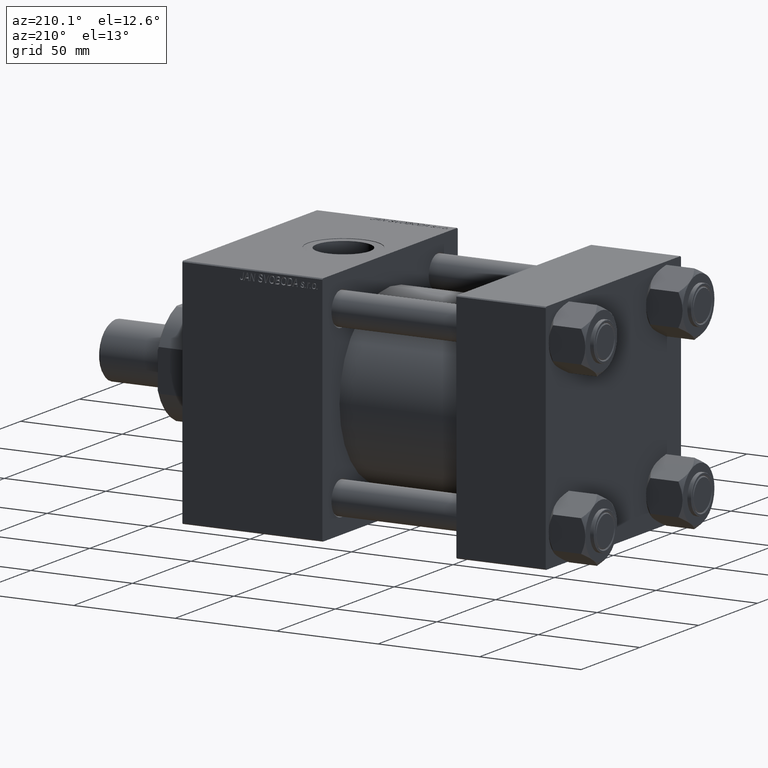
[diagram: clean part render]
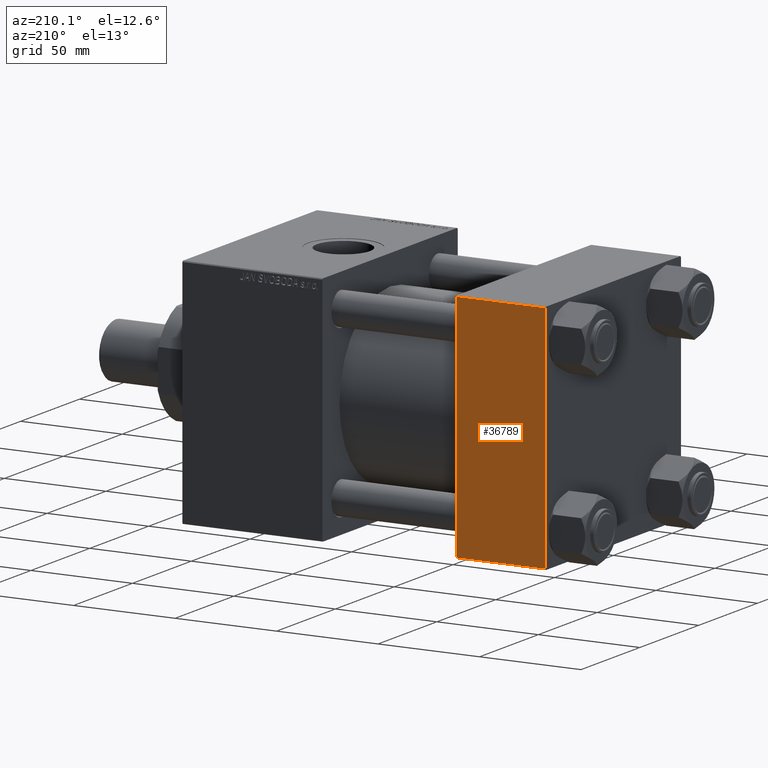
[diagram: same view with one face highlighted and labeled with its STEP entity id]
A machine part, auxiliary view. The second image highlights one B-rep face of the part: STEP entity #36789.
In plain terms, the highlighted planar face has unit normal (0, 1, 0).
Its self-contained STEP definition (entity closure, byte-faithful):
#282 = EDGE_CURVE ( 'NONE', #28335, #8438, #32369, .T. ) ;
#1511 = ORIENTED_EDGE ( 'NONE', *, *, #39549, .T. ) ;
#2745 = CARTESIAN_POINT ( 'NONE',  ( 0.000000000000000000, 57.49999999999999289, 57.50000000000000711 ) ) ;
#7771 = CARTESIAN_POINT ( 'NONE',  ( 44.00000000000000000, 57.49999999999999289, 57.50000000000000711 ) ) ;
#8438 = VERTEX_POINT ( 'NONE', #20885 ) ;
#10194 = AXIS2_PLACEMENT_3D ( 'NONE', #7771, #19970, #39658 ) ;
#10848 = CARTESIAN_POINT ( 'NONE',  ( 0.000000000000000000, 57.49999999999999289, -57.00000000000000711 ) ) ;
#12074 = VERTEX_POINT ( 'NONE', #10848 ) ;
#13216 = CARTESIAN_POINT ( 'NONE',  ( 44.00000000000000000, 57.49999999999999289, 57.00000000000003553 ) ) ;
#18049 = LINE ( 'NONE', #2745, #25586 ) ;
#19573 = CARTESIAN_POINT ( 'NONE',  ( 0.000000000000000000, 57.49999999999999289, 57.00000000000003553 ) ) ;
#19970 = DIRECTION ( 'NONE',  ( -0.000000000000000000, 1.000000000000000000, 0.000000000000000000 ) ) ;
#20885 = CARTESIAN_POINT ( 'NONE',  ( 44.00000000000000000, 57.49999999999999289, -57.00000000000000711 ) ) ;
#21805 = EDGE_CURVE ( 'NONE', #22456, #12074, #18049, .T. ) ;
#22456 = VERTEX_POINT ( 'NONE', #19573 ) ;
#22907 = CARTESIAN_POINT ( 'NONE',  ( 44.00000000000000000, 57.49999999999999289, 57.00000000000003553 ) ) ;
#23853 = FACE_OUTER_BOUND ( 'NONE', #31777, .T. ) ;
#24581 = DIRECTION ( 'NONE',  ( 0.000000000000000000, 0.000000000000000000, -1.000000000000000000 ) ) ;
#25586 = VECTOR ( 'NONE', #41884, 1000.000000000000000 ) ;
#27766 = ORIENTED_EDGE ( 'NONE', *, *, #21805, .F. ) ;
#28335 = VERTEX_POINT ( 'NONE', #22907 ) ;
#31647 = LINE ( 'NONE', #47468, #47602 ) ;
#31777 = EDGE_LOOP ( 'NONE', ( #32155, #1511, #27766, #45642 ) ) ;
#32155 = ORIENTED_EDGE ( 'NONE', *, *, #282, .T. ) ;
#32369 = LINE ( 'NONE', #40387, #39024 ) ;
#33169 = DIRECTION ( 'NONE',  ( 1.000000000000000000, 0.000000000000000000, 0.000000000000000000 ) ) ;
#33518 = VECTOR ( 'NONE', #33169, 1000.000000000000000 ) ;
#36789 = ADVANCED_FACE ( 'NONE', ( #23853 ), #43291, .T. ) ;
#39024 = VECTOR ( 'NONE', #24581, 1000.000000000000000 ) ;
#39549 = EDGE_CURVE ( 'NONE', #8438, #12074, #31647, .T. ) ;
#39645 = EDGE_CURVE ( 'NONE', #22456, #28335, #44580, .T. ) ;
#39658 = DIRECTION ( 'NONE',  ( 0.000000000000000000, -0.000000000000000000, 1.000000000000000000 ) ) ;
#39681 = DIRECTION ( 'NONE',  ( -1.000000000000000000, 0.000000000000000000, 0.000000000000000000 ) ) ;
#40387 = CARTESIAN_POINT ( 'NONE',  ( 44.00000000000000000, 57.49999999999999289, 57.50000000000000711 ) ) ;
#41884 = DIRECTION ( 'NONE',  ( 0.000000000000000000, 0.000000000000000000, -1.000000000000000000 ) ) ;
#43291 = PLANE ( 'NONE',  #10194 ) ;
#44580 = LINE ( 'NONE', #13216, #33518 ) ;
#45642 = ORIENTED_EDGE ( 'NONE', *, *, #39645, .T. ) ;
#47468 = CARTESIAN_POINT ( 'NONE',  ( 44.00000000000000000, 57.49999999999999289, -57.00000000000000711 ) ) ;
#47602 = VECTOR ( 'NONE', #39681, 1000.000000000000000 ) ;